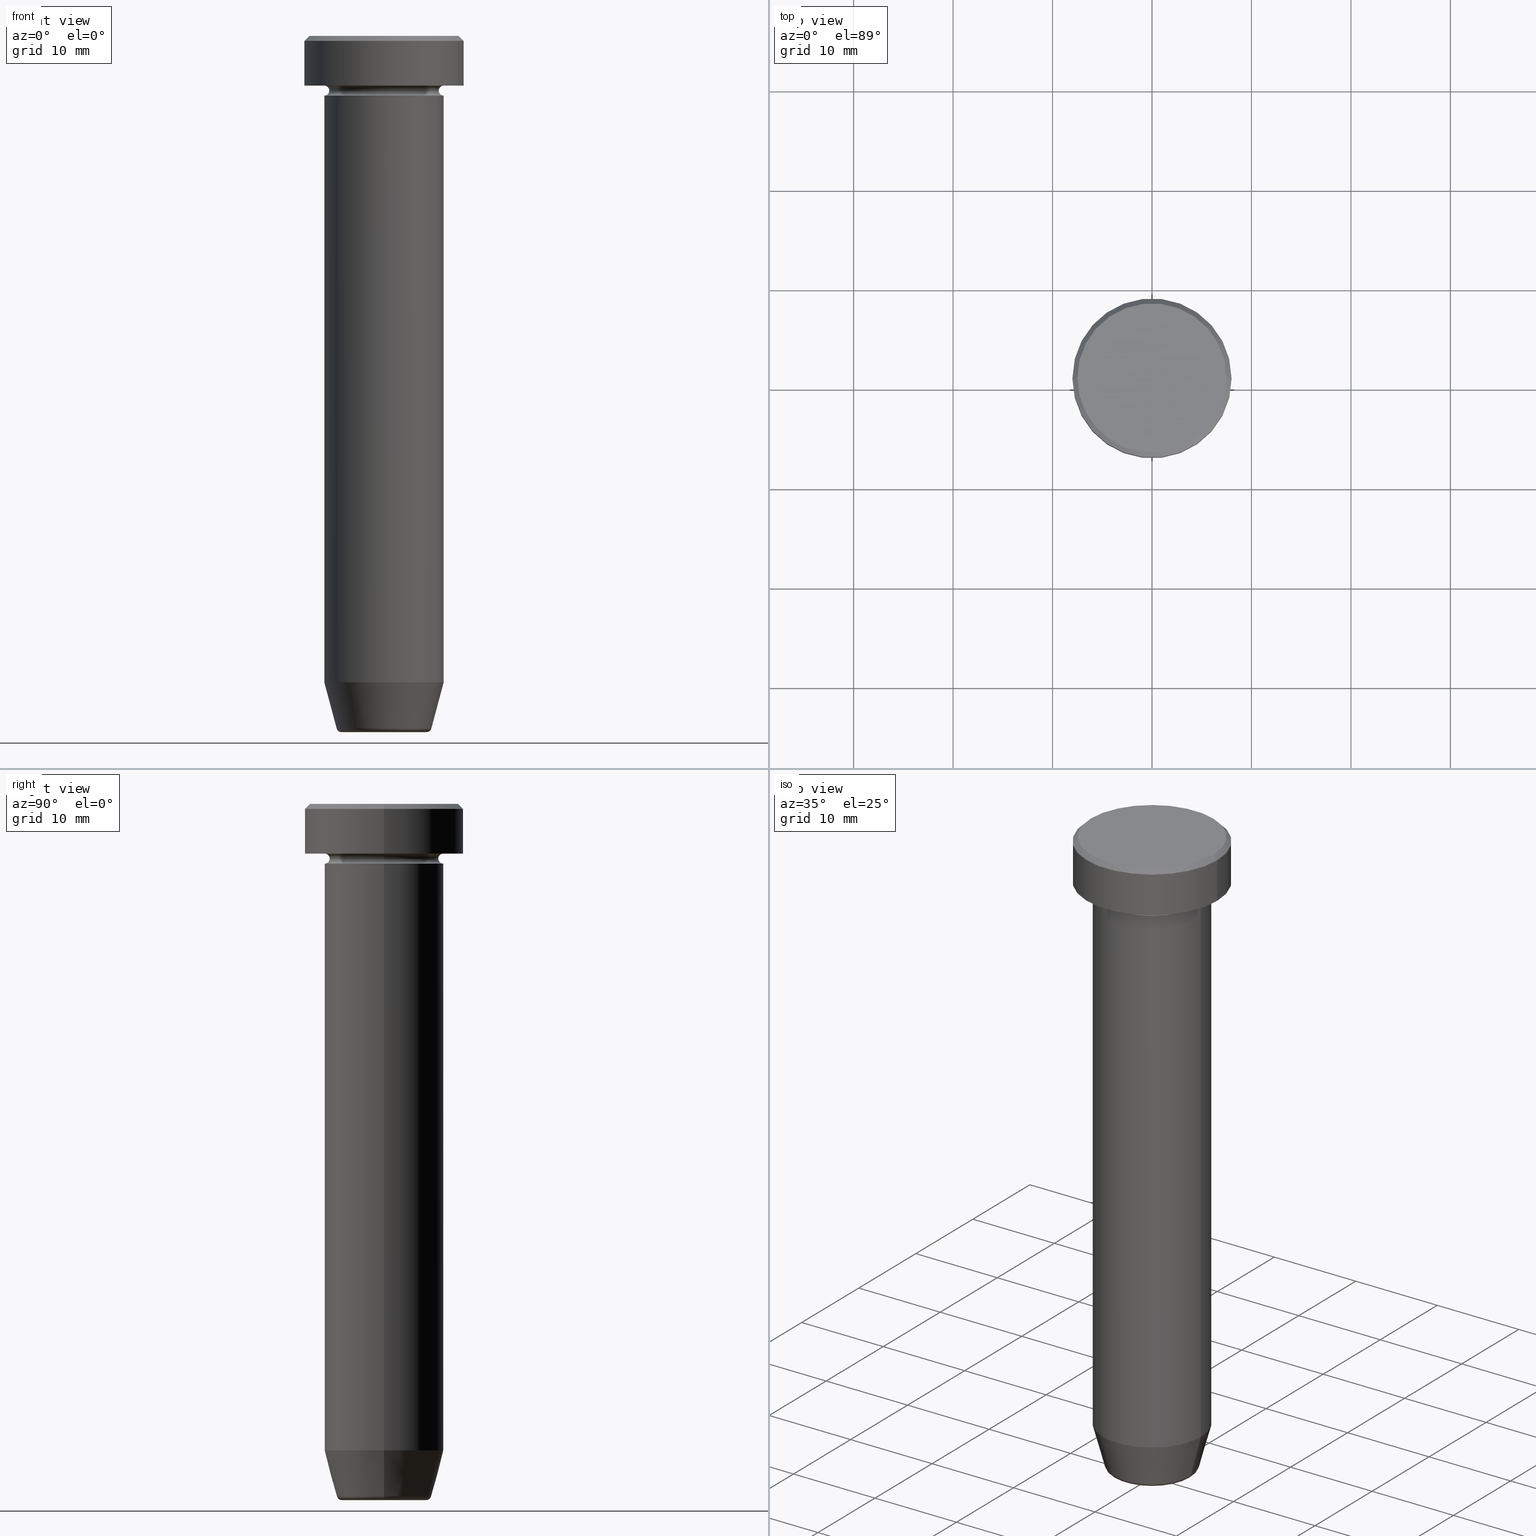
[diagram: canonical four-view strip — front | top / right | iso, engineering-drawing reading convention]
A machine part, canonical four-view strip (front | top / right | iso — engineering-drawing reading convention). The complete STEP part file that produces these views, byte-faithful:
ISO-10303-21;
HEADER;
FILE_DESCRIPTION (( 'STEP AP203' ),
    '1' );
FILE_NAME ('f1b6.STEP',
    '2024-01-02T23:16:11',
    ( '' ),
    ( '' ),
    'SwSTEP 2.0',
    'SolidWorks 2019',
    '' );
FILE_SCHEMA (( 'CONFIG_CONTROL_DESIGN' ));
ENDSEC;

DATA;
#1 = CARTESIAN_POINT ( 'NONE',  ( 0.000000000000000000, 0.000000000000000000, 0.000000000000000000 ) ) ;
#2 = AXIS2_PLACEMENT_3D ( 'NONE', #589, #73, #536 ) ;
#3 = ORIENTED_EDGE ( 'NONE', *, *, #435, .T. ) ;
#4 = CARTESIAN_POINT ( 'NONE',  ( 0.000000000000000000, 0.000000000000000000, 0.000000000000000000 ) ) ;
#5 = ORIENTED_EDGE ( 'NONE', *, *, #435, .F. ) ;
#6 = EDGE_CURVE ( 'NONE', #58, #16, #518, .T. ) ;
#7 = SECURITY_CLASSIFICATION_LEVEL ( 'unclassified' ) ;
#8 = EDGE_CURVE ( 'NONE', #314, #171, #42, .T. ) ;
#9 = DIRECTION ( 'NONE',  ( -0.000000000000000000, -0.000000000000000000, 1.000000000000000000 ) ) ;
#10 = ORIENTED_EDGE ( 'NONE', *, *, #71, .F. ) ;
#11 = CARTESIAN_POINT ( 'NONE',  ( 0.000000000000000000, 8.000000000000000000, -5.000000000000000000 ) ) ;
#12 = ORIENTED_EDGE ( 'NONE', *, *, #341, .T. ) ;
#13 =( LENGTH_UNIT ( ) NAMED_UNIT ( * ) SI_UNIT ( .MILLI., .METRE. ) );
#14 = APPLICATION_CONTEXT ( 'configuration controlled 3d designs of mechanical parts and assemblies' ) ;
#15 = DIRECTION ( 'NONE',  ( 0.000000000000000000, 0.000000000000000000, -1.000000000000000000 ) ) ;
#16 = VERTEX_POINT ( 'NONE', #255 ) ;
#17 = CALENDAR_DATE ( 2024, 3, 1 ) ;
#18 = DIRECTION ( 'NONE',  ( -0.000000000000000000, -0.000000000000000000, 1.000000000000000000 ) ) ;
#19 = ORIENTED_EDGE ( 'NONE', *, *, #274, .F. ) ;
#20 = TOROIDAL_SURFACE ( 'NONE', #90, 4.276590543854903004, 0.5000000000000000000 ) ;
#21 = DIRECTION ( 'NONE',  ( -0.000000000000000000, -0.000000000000000000, 1.000000000000000000 ) ) ;
#22 = EDGE_CURVE ( 'NONE', #16, #235, #120, .T. ) ;
#23 = DIRECTION ( 'NONE',  ( 0.000000000000000000, 0.000000000000000000, -1.000000000000000000 ) ) ;
#24 = FACE_OUTER_BOUND ( 'NONE', #563, .T. ) ;
#25 = CARTESIAN_POINT ( 'NONE',  ( 0.000000000000000000, 0.000000000000000000, -65.00000000000000000 ) ) ;
#26 = CARTESIAN_POINT ( 'NONE',  ( 8.000000000000000000, 0.000000000000000000, -5.000000000000000000 ) ) ;
#27 = AXIS2_PLACEMENT_3D ( 'NONE', #481, #342, #339 ) ;
#28 = DIRECTION ( 'NONE',  ( -0.000000000000000000, -0.000000000000000000, 1.000000000000000000 ) ) ;
#29 = CYLINDRICAL_SURFACE ( 'NONE', #532, 6.000000000000000000 ) ;
#30 = DIRECTION ( 'NONE',  ( 0.000000000000000000, -1.000000000000000000, 0.000000000000000000 ) ) ;
#31 = VERTEX_POINT ( 'NONE', #584 ) ;
#32 = AXIS2_PLACEMENT_3D ( 'NONE', #267, #313, #506 ) ;
#33 = FACE_OUTER_BOUND ( 'NONE', #594, .T. ) ;
#34 = ORIENTED_EDGE ( 'NONE', *, *, #156, .F. ) ;
#35 = CARTESIAN_POINT ( 'NONE',  ( 0.000000000000000000, 0.000000000000000000, -5.500000000000000000 ) ) ;
#36 = EDGE_LOOP ( 'NONE', ( #101, #429, #3, #390 ) ) ;
#37 = CARTESIAN_POINT ( 'NONE',  ( 5.500000000000000000, 0.000000000000000000, -5.500000000000000000 ) ) ;
#38 = ORIENTED_EDGE ( 'NONE', *, *, #154, .F. ) ;
#39 = AXIS2_PLACEMENT_3D ( 'NONE', #487, #21, #247 ) ;
#40 = CARTESIAN_POINT ( 'NONE',  ( -6.000000000000000000, 0.000000000000000000, -4.999999999999999112 ) ) ;
#41 = VERTEX_POINT ( 'NONE', #433 ) ;
#42 = CIRCLE ( 'NONE', #263, 6.000000000000000000 ) ;
#43 = DIRECTION ( 'NONE',  ( -0.000000000000000000, -0.000000000000000000, 1.000000000000000000 ) ) ;
#44 = ORIENTED_EDGE ( 'NONE', *, *, #370, .F. ) ;
#45 = APPROVAL_ROLE ( '' ) ;
#46 = CARTESIAN_POINT ( 'NONE',  ( 0.000000000000000000, 0.000000000000000000, -5.000000000000000000 ) ) ;
#47 = ADVANCED_FACE ( 'NONE', ( #494 ), #29, .T. ) ;
#48 = ORIENTED_EDGE ( 'NONE', *, *, #156, .T. ) ;
#49 = PERSON_AND_ORGANIZATION_ROLE ( 'design_supplier' ) ;
#50 = CARTESIAN_POINT ( 'NONE',  ( -6.000000000000000000, 7.347880794884119736E-16, -6.000000000000000000 ) ) ;
#51 = AXIS2_PLACEMENT_3D ( 'NONE', #590, #401, #163 ) ;
#52 = VERTEX_POINT ( 'NONE', #437 ) ;
#53 = APPROVAL_STATUS ( 'not_yet_approved' ) ;
#54 = EDGE_CURVE ( 'NONE', #93, #521, #152, .T. ) ;
#55 = DIRECTION ( 'NONE',  ( 1.000000000000000000, 0.000000000000000000, 0.000000000000000000 ) ) ;
#56 = ORIENTED_EDGE ( 'NONE', *, *, #308, .F. ) ;
#57 = CARTESIAN_POINT ( 'NONE',  ( 6.000000000000000000, 0.000000000000000000, -17.50000000000000000 ) ) ;
#58 = VERTEX_POINT ( 'NONE', #26 ) ;
#59 = DIRECTION ( 'NONE',  ( 1.000000000000000000, 0.000000000000000000, 0.000000000000000000 ) ) ;
#60 = PLANE ( 'NONE',  #395 ) ;
#61 = CIRCLE ( 'NONE', #312, 6.000000000000000000 ) ;
#62 = FACE_OUTER_BOUND ( 'NONE', #468, .T. ) ;
#63 = DIRECTION ( 'NONE',  ( 1.000000000000000000, 0.000000000000000000, 0.000000000000000000 ) ) ;
#64 = EDGE_CURVE ( 'NONE', #235, #16, #475, .T. ) ;
#65 = EDGE_CURVE ( 'NONE', #257, #521, #460, .T. ) ;
#66 = VECTOR ( 'NONE', #347, 1000.000000000000114 ) ;
#67 = EDGE_CURVE ( 'NONE', #223, #16, #442, .T. ) ;
#68 = MANIFOLD_SOLID_BREP ( 'Zaoblit4', #399 ) ;
#69 = CARTESIAN_POINT ( 'NONE',  ( -6.000000000000000000, 7.347880794884119736E-16, 0.000000000000000000 ) ) ;
#70 = CARTESIAN_POINT ( 'NONE',  ( 0.000000000000000000, 0.000000000000000000, -5.000000000000000000 ) ) ;
#71 = EDGE_CURVE ( 'NONE', #241, #58, #379, .T. ) ;
#72 = DIRECTION ( 'NONE',  ( 0.2588190451025210170, 0.000000000000000000, 0.9659258262890680902 ) ) ;
#73 = DIRECTION ( 'NONE',  ( -0.000000000000000000, -0.000000000000000000, 1.000000000000000000 ) ) ;
#74 = EDGE_CURVE ( 'NONE', #93, #41, #450, .T. ) ;
#75 = FACE_OUTER_BOUND ( 'NONE', #448, .T. ) ;
#76 = ORIENTED_EDGE ( 'NONE', *, *, #54, .F. ) ;
#77 = APPROVAL ( #53, 'NEUR�EN�' ) ;
#78 = DIRECTION ( 'NONE',  ( -0.000000000000000000, -0.000000000000000000, 1.000000000000000000 ) ) ;
#79 = VERTEX_POINT ( 'NONE', #209 ) ;
#80 = CIRCLE ( 'NONE', #89, 6.000000000000000000 ) ;
#81 = DIRECTION ( 'NONE',  ( 1.000000000000000000, 0.000000000000000000, 0.000000000000000000 ) ) ;
#82 = EDGE_LOOP ( 'NONE', ( #474, #201, #225, #510 ) ) ;
#83 = ADVANCED_FACE ( 'NONE', ( #250 ), #349, .F. ) ;
#84 = DIRECTION ( 'NONE',  ( 1.000000000000000000, 0.000000000000000000, 0.000000000000000000 ) ) ;
#85 = EDGE_LOOP ( 'NONE', ( #574, #19 ) ) ;
#86 = DIRECTION ( 'NONE',  ( 1.000000000000000000, 0.000000000000000000, 0.000000000000000000 ) ) ;
#87 = PRODUCT ( 'f1b6', 'f1b6', '', ( #96 ) ) ;
#88 = VERTEX_POINT ( 'NONE', #439 ) ;
#89 = AXIS2_PLACEMENT_3D ( 'NONE', #392, #155, #350 ) ;
#90 = AXIS2_PLACEMENT_3D ( 'NONE', #438, #436, #535 ) ;
#91 = LINE ( 'NONE', #425, #527 ) ;
#92 = ADVANCED_FACE ( 'NONE', ( #541 ), #60, .T. ) ;
#93 = VERTEX_POINT ( 'NONE', #207 ) ;
#94 = LINE ( 'NONE', #285, #159 ) ;
#95 = ORIENTED_EDGE ( 'NONE', *, *, #251, .T. ) ;
#96 = MECHANICAL_CONTEXT ( 'NONE', #14, 'mechanical' ) ;
#97 = CARTESIAN_POINT ( 'NONE',  ( 0.000000000000000000, -4.336808689942017736E-15, -17.50000000000000000 ) ) ;
#98 = ORIENTED_EDGE ( 'NONE', *, *, #8, .F. ) ;
#99 = DIRECTION ( 'NONE',  ( 0.000000000000000000, -1.000000000000000000, 0.000000000000000000 ) ) ;
#100 = AXIS2_PLACEMENT_3D ( 'NONE', #491, #115, #116 ) ;
#101 = ORIENTED_EDGE ( 'NONE', *, *, #333, .F. ) ;
#102 = CALENDAR_DATE ( 2024, 3, 1 ) ;
#103 = CARTESIAN_POINT ( 'NONE',  ( 0.000000000000000000, 0.000000000000000000, 0.000000000000000000 ) ) ;
#104 = EDGE_LOOP ( 'NONE', ( #553, #505, #98, #5 ) ) ;
#105 = APPROVAL_ROLE ( '' ) ;
#106 = DIRECTION ( 'NONE',  ( -1.000000000000000000, 0.000000000000000000, -0.000000000000000000 ) ) ;
#107 = DIRECTION ( 'NONE',  ( -0.000000000000000000, -0.000000000000000000, 1.000000000000000000 ) ) ;
#108 = DIRECTION ( 'NONE',  ( -0.000000000000000000, -0.000000000000000000, 1.000000000000000000 ) ) ;
#109 = DIRECTION ( 'NONE',  ( 0.000000000000000000, 0.000000000000000000, -1.000000000000000000 ) ) ;
#110 = AXIS2_PLACEMENT_3D ( 'NONE', #245, #441, #543 ) ;
#111 = CIRCLE ( 'NONE', #261, 0.5000000000000004441 ) ;
#112 = VECTOR ( 'NONE', #249, 1000.000000000000000 ) ;
#113 = DIRECTION ( 'NONE',  ( 1.224646799147353207E-16, 1.000000000000000000, 0.000000000000000000 ) ) ;
#114 = DIRECTION ( 'NONE',  ( 1.000000000000000000, 0.000000000000000000, 0.000000000000000000 ) ) ;
#115 = DIRECTION ( 'NONE',  ( -0.000000000000000000, -0.000000000000000000, 1.000000000000000000 ) ) ;
#116 = DIRECTION ( 'NONE',  ( -1.000000000000000000, 0.000000000000000000, 0.000000000000000000 ) ) ;
#117 = AXIS2_PLACEMENT_3D ( 'NONE', #1, #282, #380 ) ;
#118 = LOCAL_TIME ( 0, 16, 11.00000000000000000, #337 ) ;
#119 = DIRECTION ( 'NONE',  ( 0.000000000000000000, 0.000000000000000000, -1.000000000000000000 ) ) ;
#120 = CIRCLE ( 'NONE', #568, 8.000000000000000000 ) ;
#121 = APPLICATION_CONTEXT ( 'configuration controlled 3d designs of mechanical parts and assemblies' ) ;
#122 = LINE ( 'NONE', #125, #469 ) ;
#123 = EDGE_CURVE ( 'NONE', #317, #596, #146, .T. ) ;
#124 = VERTEX_POINT ( 'NONE', #398 ) ;
#125 = CARTESIAN_POINT ( 'NONE',  ( 6.000000000000000000, 0.000000000000000000, 0.000000000000000000 ) ) ;
#126 = ORIENTED_EDGE ( 'NONE', *, *, #192, .F. ) ;
#127 = AXIS2_PLACEMENT_3D ( 'NONE', #46, #140, #420 ) ;
#128 = PLANE ( 'NONE',  #172 ) ;
#129 = CC_DESIGN_DATE_AND_TIME_ASSIGNMENT ( #197, #226, ( #348 ) ) ;
#130 = ORIENTED_EDGE ( 'NONE', *, *, #318, .T. ) ;
#131 = CARTESIAN_POINT ( 'NONE',  ( 0.000000000000000000, 0.000000000000000000, 0.000000000000000000 ) ) ;
#132 = EDGE_LOOP ( 'NONE', ( #444, #95, #56, #182 ) ) ;
#133 = DIRECTION ( 'NONE',  ( 0.000000000000000000, 0.000000000000000000, -1.000000000000000000 ) ) ;
#134 = ORIENTED_EDGE ( 'NONE', *, *, #426, .T. ) ;
#135 = PERSON_AND_ORGANIZATION ( #284, #504 ) ;
#136 = AXIS2_PLACEMENT_3D ( 'NONE', #170, #449, #167 ) ;
#137 = DIRECTION ( 'NONE',  ( -1.224646799147353207E-16, 1.000000000000000000, 0.000000000000000000 ) ) ;
#138 = EDGE_LOOP ( 'NONE', ( #148, #48 ) ) ;
#139 = APPROVAL_STATUS ( 'not_yet_approved' ) ;
#140 = DIRECTION ( 'NONE',  ( -0.000000000000000000, -0.000000000000000000, 1.000000000000000000 ) ) ;
#141 = EDGE_LOOP ( 'NONE', ( #216, #465 ) ) ;
#142 = CARTESIAN_POINT ( 'NONE',  ( 0.000000000000000000, 0.000000000000000000, 0.000000000000000000 ) ) ;
#143 = DIRECTION ( 'NONE',  ( -0.000000000000000000, -0.000000000000000000, 1.000000000000000000 ) ) ;
#144 = APPROVAL_STATUS ( 'not_yet_approved' ) ;
#145 = CYLINDRICAL_SURFACE ( 'NONE', #117, 6.000000000000000000 ) ;
#146 = CIRCLE ( 'NONE', #213, 6.000000000000000000 ) ;
#147 = CIRCLE ( 'NONE', #503, 6.000000000000000000 ) ;
#148 = ORIENTED_EDGE ( 'NONE', *, *, #434, .T. ) ;
#149 = LOCAL_TIME ( 0, 16, 11.00000000000000000, #180 ) ;
#150 = DATE_AND_TIME ( #17, #188 ) ;
#151 = CARTESIAN_POINT ( 'NONE',  ( 6.000000000000000000, 0.000000000000000000, -6.000000000000000000 ) ) ;
#152 = LINE ( 'NONE', #544, #160 ) ;
#153 = FACE_OUTER_BOUND ( 'NONE', #189, .T. ) ;
#154 = EDGE_CURVE ( 'NONE', #41, #93, #445, .T. ) ;
#155 = DIRECTION ( 'NONE',  ( -0.000000000000000000, -0.000000000000000000, 1.000000000000000000 ) ) ;
#156 = EDGE_CURVE ( 'NONE', #266, #513, #80, .T. ) ;
#157 = CYLINDRICAL_SURFACE ( 'NONE', #492, 8.000000000000000000 ) ;
#158 = CARTESIAN_POINT ( 'NONE',  ( 7.500000000000009770, 9.184850993605161750E-16, 0.000000000000000000 ) ) ;
#159 = VECTOR ( 'NONE', #319, 1000.000000000000114 ) ;
#160 = VECTOR ( 'NONE', #534, 1000.000000000000114 ) ;
#161 = CARTESIAN_POINT ( 'NONE',  ( 0.000000000000000000, 6.000000000000000000, -17.50000000000000000 ) ) ;
#162 = ADVANCED_FACE ( 'NONE', ( #582 ), #561, .T. ) ;
#163 = DIRECTION ( 'NONE',  ( -1.000000000000000000, 0.000000000000000000, 0.000000000000000000 ) ) ;
#164 = CIRCLE ( 'NONE', #244, 0.5000000000000004441 ) ;
#165 = CARTESIAN_POINT ( 'NONE',  ( 0.000000000000000000, 0.000000000000000000, -70.00000000000000000 ) ) ;
#166 = ORIENTED_EDGE ( 'NONE', *, *, #67, .F. ) ;
#167 = DIRECTION ( 'NONE',  ( 1.000000000000000000, 0.000000000000000000, 0.000000000000000000 ) ) ;
#168 = EDGE_CURVE ( 'NONE', #41, #257, #248, .T. ) ;
#169 = ORIENTED_EDGE ( 'NONE', *, *, #508, .F. ) ;
#170 = CARTESIAN_POINT ( 'NONE',  ( 0.000000000000000000, 0.000000000000000000, 0.000000000000000000 ) ) ;
#171 = VERTEX_POINT ( 'NONE', #252 ) ;
#172 = AXIS2_PLACEMENT_3D ( 'NONE', #316, #592, #409 ) ;
#173 = VECTOR ( 'NONE', #413, 1000.000000000000000 ) ;
#174 = PRODUCT_DEFINITION_FORMATION_WITH_SPECIFIED_SOURCE ( 'LIBOVOLN�', '', #87, .NOT_KNOWN. ) ;
#175 = CARTESIAN_POINT ( 'NONE',  ( 0.000000000000000000, 0.000000000000000000, -17.50000000000000000 ) ) ;
#176 = ORIENTED_EDGE ( 'NONE', *, *, #297, .F. ) ;
#177 = UNCERTAINTY_MEASURE_WITH_UNIT (LENGTH_MEASURE( 1.000000000000000082E-05 ), #13, 'distance_accuracy_value', 'NONE');
#178 = DIRECTION ( 'NONE',  ( -0.000000000000000000, -0.000000000000000000, 1.000000000000000000 ) ) ;
#179 = EDGE_LOOP ( 'NONE', ( #260, #324, #558, #309 ) ) ;
#180 = COORDINATED_UNIVERSAL_TIME_OFFSET ( 1, 0, .AHEAD. ) ;
#181 = FACE_OUTER_BOUND ( 'NONE', #306, .T. ) ;
#182 = ORIENTED_EDGE ( 'NONE', *, *, #385, .F. ) ;
#183 = CC_DESIGN_DATE_AND_TIME_ASSIGNMENT ( #375, #287, ( #447 ) ) ;
#184 = PERSON_AND_ORGANIZATION ( #284, #504 ) ;
#185 = CIRCLE ( 'NONE', #291, 7.500000000000009770 ) ;
#186 = AXIS2_PLACEMENT_3D ( 'NONE', #530, #523, #571 ) ;
#187 = FACE_OUTER_BOUND ( 'NONE', #196, .T. ) ;
#188 = LOCAL_TIME ( 0, 16, 11.00000000000000000, #514 ) ;
#189 = EDGE_LOOP ( 'NONE', ( #76, #421, #381, #569 ) ) ;
#190 = APPLICATION_PROTOCOL_DEFINITION ( 'international standard', 'config_control_design', 1994, #14 ) ;
#191 = DIRECTION ( 'NONE',  ( 0.000000000000000000, 0.000000000000000000, -1.000000000000000000 ) ) ;
#192 = EDGE_CURVE ( 'NONE', #223, #124, #185, .T. ) ;
#193 = EDGE_LOOP ( 'NONE', ( #599, #283, #531, #34 ) ) ;
#194 = EDGE_CURVE ( 'NONE', #238, #88, #538, .T. ) ;
#195 = FACE_OUTER_BOUND ( 'NONE', #132, .T. ) ;
#196 = EDGE_LOOP ( 'NONE', ( #166, #410, #134, #384 ) ) ;
#197 = DATE_AND_TIME ( #277, #578 ) ;
#198 = DIRECTION ( 'NONE',  ( -1.000000000000000000, 1.224646799147351482E-16, 0.000000000000000000 ) ) ;
#199 = CIRCLE ( 'NONE', #253, 0.4999999999999995559 ) ;
#200 = APPROVAL_PERSON_ORGANIZATION ( #322, #290, #105 ) ;
#201 = ORIENTED_EDGE ( 'NONE', *, *, #575, .T. ) ;
#202 = ADVANCED_FACE ( 'NONE', ( #33 ), #219, .T. ) ;
#203 = DIRECTION ( 'NONE',  ( -0.000000000000000000, -0.000000000000000000, 1.000000000000000000 ) ) ;
#204 = CARTESIAN_POINT ( 'NONE',  ( 0.000000000000000000, 0.000000000000000000, -6.000000000000000000 ) ) ;
#205 = CARTESIAN_POINT ( 'NONE',  ( 0.000000000000000000, 0.000000000000000000, -5.500000000000000000 ) ) ;
#206 = DIRECTION ( 'NONE',  ( 1.000000000000000000, 0.000000000000000000, 0.000000000000000000 ) ) ;
#207 = CARTESIAN_POINT ( 'NONE',  ( -4.759553456999439547, 6.588326350684602264E-16, -69.62940952255127058 ) ) ;
#208 = AXIS2_PLACEMENT_3D ( 'NONE', #237, #222, #367 ) ;
#209 = CARTESIAN_POINT ( 'NONE',  ( 6.000000000000000000, 0.000000000000000000, -17.50000000000000000 ) ) ;
#210 = CC_DESIGN_PERSON_AND_ORGANIZATION_ASSIGNMENT ( #184, #325, ( #447 ) ) ;
#211 = DIRECTION ( 'NONE',  ( -0.000000000000000000, -0.000000000000000000, 1.000000000000000000 ) ) ;
#212 = DIRECTION ( 'NONE',  ( -0.000000000000000000, -0.000000000000000000, 1.000000000000000000 ) ) ;
#213 = AXIS2_PLACEMENT_3D ( 'NONE', #204, #343, #580 ) ;
#214 = ORIENTED_EDGE ( 'NONE', *, *, #370, .T. ) ;
#215 = AXIS2_PLACEMENT_3D ( 'NONE', #165, #119, #497 ) ;
#216 = ORIENTED_EDGE ( 'NONE', *, *, #305, .T. ) ;
#217 = DIRECTION ( 'NONE',  ( -0.000000000000000000, -0.000000000000000000, 1.000000000000000000 ) ) ;
#218 = ORIENTED_EDGE ( 'NONE', *, *, #65, .F. ) ;
#219 = CYLINDRICAL_SURFACE ( 'NONE', #501, 8.000000000000000000 ) ;
#220 = ORIENTED_EDGE ( 'NONE', *, *, #64, .T. ) ;
#221 = CIRCLE ( 'NONE', #39, 6.000000000000000000 ) ;
#222 = DIRECTION ( 'NONE',  ( -0.000000000000000000, -0.000000000000000000, 1.000000000000000000 ) ) ;
#223 = VERTEX_POINT ( 'NONE', #548 ) ;
#224 = DIRECTION ( 'NONE',  ( -0.000000000000000000, -1.000000000000000000, -0.000000000000000000 ) ) ;
#225 = ORIENTED_EDGE ( 'NONE', *, *, #123, .T. ) ;
#226 = DATE_TIME_ROLE ( 'creation_date' ) ;
#227 = EDGE_CURVE ( 'NONE', #257, #513, #122, .T. ) ;
#228 = DIRECTION ( 'NONE',  ( 0.000000000000000000, 0.000000000000000000, -1.000000000000000000 ) ) ;
#229 = ORIENTED_EDGE ( 'NONE', *, *, #192, .T. ) ;
#230 = PERSON_AND_ORGANIZATION ( #284, #504 ) ;
#231 = CIRCLE ( 'NONE', #321, 0.5000000000000004441 ) ;
#232 = ADVANCED_FACE ( 'NONE', ( #551 ), #585, .F. ) ;
#233 = PLANE ( 'NONE',  #456 ) ;
#234 = APPROVAL_PERSON_ORGANIZATION ( #135, #452, #45 ) ;
#235 = VERTEX_POINT ( 'NONE', #443 ) ;
#236 = CARTESIAN_POINT ( 'NONE',  ( 0.000000000000000000, 0.000000000000000000, 0.000000000000000000 ) ) ;
#237 = CARTESIAN_POINT ( 'NONE',  ( 0.000000000000000000, 0.000000000000000000, 0.000000000000000000 ) ) ;
#238 = VERTEX_POINT ( 'NONE', #37 ) ;
#239 = DIRECTION ( 'NONE',  ( 0.000000000000000000, 0.000000000000000000, 1.000000000000000000 ) ) ;
#240 = CARTESIAN_POINT ( 'NONE',  ( 0.000000000000000000, 0.000000000000000000, -70.00000000000000000 ) ) ;
#241 = VERTEX_POINT ( 'NONE', #307 ) ;
#242 = COORDINATED_UNIVERSAL_TIME_OFFSET ( 1, 0, .AHEAD. ) ;
#243 = CARTESIAN_POINT ( 'NONE',  ( 0.000000000000000000, 0.000000000000000000, -17.50000000000000000 ) ) ;
#244 = AXIS2_PLACEMENT_3D ( 'NONE', #489, #583, #198 ) ;
#245 = CARTESIAN_POINT ( 'NONE',  ( 0.000000000000000000, 0.000000000000000000, -5.500000000000000000 ) ) ;
#246 = ADVANCED_FACE ( 'NONE', ( #310 ), #128, .F. ) ;
#247 = DIRECTION ( 'NONE',  ( 1.000000000000000000, 0.000000000000000000, 0.000000000000000000 ) ) ;
#248 = LINE ( 'NONE', #299, #430 ) ;
#249 = DIRECTION ( 'NONE',  ( -0.000000000000000000, -0.000000000000000000, 1.000000000000000000 ) ) ;
#250 = FACE_OUTER_BOUND ( 'NONE', #82, .T. ) ;
#251 = EDGE_CURVE ( 'NONE', #31, #317, #407, .T. ) ;
#252 = CARTESIAN_POINT ( 'NONE',  ( 6.000000000000000000, 7.347880794884119736E-16, -4.999999999999999112 ) ) ;
#253 = AXIS2_PLACEMENT_3D ( 'NONE', #540, #113, #288 ) ;
#254 = CC_DESIGN_PERSON_AND_ORGANIZATION_ASSIGNMENT ( #463, #418, ( #174 ) ) ;
#255 = CARTESIAN_POINT ( 'NONE',  ( 8.000000000000000000, 0.000000000000000000, -0.4999999999999935052 ) ) ;
#256 = DIRECTION ( 'NONE',  ( 0.000000000000000000, 0.000000000000000000, -1.000000000000000000 ) ) ;
#257 = VERTEX_POINT ( 'NONE', #509 ) ;
#258 = CARTESIAN_POINT ( 'NONE',  ( -6.000000000000000000, 7.347880794884119736E-16, -17.50000000000000000 ) ) ;
#259 = AXIS2_PLACEMENT_3D ( 'NONE', #35, #212, #81 ) ;
#260 = ORIENTED_EDGE ( 'NONE', *, *, #251, .F. ) ;
#261 = AXIS2_PLACEMENT_3D ( 'NONE', #467, #99, #15 ) ;
#262 = DIRECTION ( 'NONE',  ( -0.000000000000000000, -0.000000000000000000, 1.000000000000000000 ) ) ;
#263 = AXIS2_PLACEMENT_3D ( 'NONE', #525, #211, #300 ) ;
#264 = ADVANCED_FACE ( 'NONE', ( #595 ), #545, .F. ) ;
#265 = CARTESIAN_POINT ( 'NONE',  ( 0.000000000000000000, 0.000000000000000000, -6.000000000000000000 ) ) ;
#266 = VERTEX_POINT ( 'NONE', #258 ) ;
#267 = CARTESIAN_POINT ( 'NONE',  ( 0.000000000000000000, 0.000000000000000000, -69.50000000000000000 ) ) ;
#268 = EDGE_CURVE ( 'NONE', #359, #41, #539, .T. ) ;
#269 = ORIENTED_EDGE ( 'NONE', *, *, #168, .F. ) ;
#270 = AXIS2_PLACEMENT_3D ( 'NONE', #240, #391, #432 ) ;
#271 = FACE_OUTER_BOUND ( 'NONE', #193, .T. ) ;
#272 = ORIENTED_EDGE ( 'NONE', *, *, #575, .F. ) ;
#273 = CARTESIAN_POINT ( 'NONE',  ( -6.000000000000000000, 0.000000000000000000, -5.500000000000000000 ) ) ;
#274 = EDGE_CURVE ( 'NONE', #31, #79, #61, .T. ) ;
#275 = ORIENTED_EDGE ( 'NONE', *, *, #482, .F. ) ;
#276 = MANIFOLD_SOLID_BREP ( 'Zkosen�1', #415 ) ;
#277 = CALENDAR_DATE ( 2024, 3, 1 ) ;
#278 = CYLINDRICAL_SURFACE ( 'NONE', #208, 6.000000000000000000 ) ;
#279 = ORIENTED_EDGE ( 'NONE', *, *, #194, .F. ) ;
#280 = PERSON_AND_ORGANIZATION_ROLE ( 'design_owner' ) ;
#281 = CIRCLE ( 'NONE', #27, 8.000000000000000000 ) ;
#282 = DIRECTION ( 'NONE',  ( -0.000000000000000000, -0.000000000000000000, 1.000000000000000000 ) ) ;
#283 = ORIENTED_EDGE ( 'NONE', *, *, #556, .T. ) ;
#284 = PERSON ( 'NEUR�EN�', 'NEUR�EN�', 'NEUR�EN�', ('NEUR�EN�'), ('NEUR�EN�'), ('NEUR�EN�') ) ;
#285 = CARTESIAN_POINT ( 'NONE',  ( -7.500000000000009770, 0.000000000000000000, 0.000000000000000000 ) ) ;
#286 = ORIENTED_EDGE ( 'NONE', *, *, #308, .T. ) ;
#287 = DATE_TIME_ROLE ( 'classification_date' ) ;
#288 = DIRECTION ( 'NONE',  ( -1.000000000000000000, 1.224646799147353454E-16, 0.000000000000000000 ) ) ;
#289 = CARTESIAN_POINT ( 'NONE',  ( 0.000000000000000000, 0.000000000000000000, 0.000000000000000000 ) ) ;
#290 = APPROVAL ( #144, 'NEUR�EN�' ) ;
#291 = AXIS2_PLACEMENT_3D ( 'NONE', #402, #499, #86 ) ;
#292 = DIRECTION ( 'NONE',  ( 1.000000000000000000, 0.000000000000000000, 0.000000000000000000 ) ) ;
#293 = TOROIDAL_SURFACE ( 'NONE', #32, 4.276590543854903004, 0.5000000000000000000 ) ;
#294 = DIRECTION ( 'NONE',  ( -0.000000000000000000, -0.000000000000000000, 1.000000000000000000 ) ) ;
#295 = DIRECTION ( 'NONE',  ( 1.000000000000000000, 0.000000000000000000, 0.000000000000000000 ) ) ;
#296 = DIRECTION ( 'NONE',  ( -1.000000000000000000, 0.000000000000000000, -0.000000000000000000 ) ) ;
#297 = EDGE_CURVE ( 'NONE', #52, #359, #403, .T. ) ;
#298 = ADVANCED_FACE ( 'NONE', ( #75 ), #554, .T. ) ;
#299 = CARTESIAN_POINT ( 'NONE',  ( 4.660254037844383745, 0.000000000000000000, -70.00000000000000000 ) ) ;
#300 = DIRECTION ( 'NONE',  ( -1.000000000000000000, 0.000000000000000000, 0.000000000000000000 ) ) ;
#301 = CONICAL_SURFACE ( 'NONE', #270, 4.660254037844383745, 0.2617993877991497409 ) ;
#302 = LOCAL_TIME ( 0, 16, 11.00000000000000000, #528 ) ;
#303 = ADVANCED_FACE ( 'NONE', ( #358 ), #293, .T. ) ;
#304 = DIRECTION ( 'NONE',  ( 1.000000000000000000, 0.000000000000000000, 0.000000000000000000 ) ) ;
#305 = EDGE_CURVE ( 'NONE', #359, #52, #374, .T. ) ;
#306 = EDGE_LOOP ( 'NONE', ( #377, #458, #417, #498 ) ) ;
#307 = CARTESIAN_POINT ( 'NONE',  ( -8.000000000000000000, 9.797174393178825657E-16, -5.000000000000000000 ) ) ;
#308 = EDGE_CURVE ( 'NONE', #596, #317, #147, .T. ) ;
#309 = ORIENTED_EDGE ( 'NONE', *, *, #123, .F. ) ;
#310 = FACE_OUTER_BOUND ( 'NONE', #141, .T. ) ;
#311 = ORIENTED_EDGE ( 'NONE', *, *, #268, .F. ) ;
#312 = AXIS2_PLACEMENT_3D ( 'NONE', #175, #262, #304 ) ;
#313 = DIRECTION ( 'NONE',  ( -0.000000000000000000, -0.000000000000000000, 1.000000000000000000 ) ) ;
#314 = VERTEX_POINT ( 'NONE', #40 ) ;
#315 = ADVANCED_FACE ( 'NONE', ( #271 ), #145, .T. ) ;
#316 = CARTESIAN_POINT ( 'NONE',  ( 0.000000000000000000, 2.449293598294707302E-15, -70.00000000000000000 ) ) ;
#317 = VERTEX_POINT ( 'NONE', #50 ) ;
#318 = EDGE_CURVE ( 'NONE', #124, #223, #562, .T. ) ;
#319 = DIRECTION ( 'NONE',  ( -0.7071067811865451302, 0.000000000000000000, -0.7071067811865500152 ) ) ;
#320 = ORIENTED_EDGE ( 'NONE', *, *, #305, .F. ) ;
#321 = AXIS2_PLACEMENT_3D ( 'NONE', #423, #137, #335 ) ;
#322 = PERSON_AND_ORGANIZATION ( #284, #504 ) ;
#323 = FACE_OUTER_BOUND ( 'NONE', #138, .T. ) ;
#324 = ORIENTED_EDGE ( 'NONE', *, *, #274, .T. ) ;
#325 = PERSON_AND_ORGANIZATION_ROLE ( 'classification_officer' ) ;
#326 = AXIS2_PLACEMENT_3D ( 'NONE', #25, #107, #114 ) ;
#327 = CARTESIAN_POINT ( 'NONE',  ( 0.000000000000000000, 0.000000000000000000, 0.000000000000000000 ) ) ;
#328 = ORIENTED_EDGE ( 'NONE', *, *, #268, .T. ) ;
#329 = PERSON_AND_ORGANIZATION ( #284, #504 ) ;
#330 = FACE_OUTER_BOUND ( 'NONE', #424, .T. ) ;
#331 = ORIENTED_EDGE ( 'NONE', *, *, #462, .T. ) ;
#332 = APPROVAL_DATE_TIME ( #150, #290 ) ;
#333 = EDGE_CURVE ( 'NONE', #238, #171, #231, .T. ) ;
#334 = CIRCLE ( 'NONE', #586, 0.5000000000000004441 ) ;
#335 = DIRECTION ( 'NONE',  ( -1.000000000000000000, -1.224646799147351482E-16, 0.000000000000000000 ) ) ;
#336 = ORIENTED_EDGE ( 'NONE', *, *, #6, .T. ) ;
#337 = COORDINATED_UNIVERSAL_TIME_OFFSET ( 1, 0, .AHEAD. ) ;
#338 = ADVANCED_FACE ( 'NONE', ( #187 ), #354, .T. ) ;
#339 = DIRECTION ( 'NONE',  ( 1.000000000000000000, 0.000000000000000000, 0.000000000000000000 ) ) ;
#340 = DIRECTION ( 'NONE',  ( 1.000000000000000000, 0.000000000000000000, 0.000000000000000000 ) ) ;
#341 = EDGE_CURVE ( 'NONE', #238, #596, #111, .T. ) ;
#342 = DIRECTION ( 'NONE',  ( -0.000000000000000000, -0.000000000000000000, 1.000000000000000000 ) ) ;
#343 = DIRECTION ( 'NONE',  ( -0.000000000000000000, -0.000000000000000000, 1.000000000000000000 ) ) ;
#344 = DIRECTION ( 'NONE',  ( 0.000000000000000000, 0.000000000000000000, -1.000000000000000000 ) ) ;
#345 = CONICAL_SURFACE ( 'NONE', #422, 7.500000000000009770, 0.7853981633974447263 ) ;
#346 = AXIS2_PLACEMENT_3D ( 'NONE', #236, #239, #386 ) ;
#347 = DIRECTION ( 'NONE',  ( 0.7071067811865451302, 8.659560562354904508E-17, -0.7071067811865500152 ) ) ;
#348 = PRODUCT_DEFINITION ( 'NEZN�M�', '', #174, #357 ) ;
#349 = TOROIDAL_SURFACE ( 'NONE', #110, 6.000000000000000000, 0.5000000000000000000 ) ;
#350 = DIRECTION ( 'NONE',  ( 1.000000000000000000, 0.000000000000000000, 0.000000000000000000 ) ) ;
#351 = CARTESIAN_POINT ( 'NONE',  ( 0.000000000000000000, 0.000000000000000000, -0.4999999999999935052 ) ) ;
#352 = ADVANCED_FACE ( 'NONE', ( #195 ), #278, .T. ) ;
#353 = CARTESIAN_POINT ( 'NONE',  ( -6.000000000000000000, 7.347880794884119736E-16, 0.000000000000000000 ) ) ;
#354 = CONICAL_SURFACE ( 'NONE', #412, 7.500000000000009770, 0.7853981633974447263 ) ;
#355 = DIRECTION ( 'NONE',  ( -0.000000000000000000, -0.000000000000000000, 1.000000000000000000 ) ) ;
#356 = EDGE_LOOP ( 'NONE', ( #176, #461, #38, #311 ) ) ;
#357 = DESIGN_CONTEXT ( 'detailed design', #121, 'design' ) ;
#358 = FACE_OUTER_BOUND ( 'NONE', #479, .T. ) ;
#359 = VERTEX_POINT ( 'NONE', #557 ) ;
#360 = CARTESIAN_POINT ( 'NONE',  ( 0.000000000000000000, 0.000000000000000000, -70.00000000000000000 ) ) ;
#361 = AXIS2_PLACEMENT_3D ( 'NONE', #587, #488, #63 ) ;
#362 = ORIENTED_EDGE ( 'NONE', *, *, #64, .F. ) ;
#363 = CIRCLE ( 'NONE', #598, 6.000000000000000000 ) ;
#364 = DIRECTION ( 'NONE',  ( 0.000000000000000000, 0.000000000000000000, -1.000000000000000000 ) ) ;
#365 = CC_DESIGN_PERSON_AND_ORGANIZATION_ASSIGNMENT ( #329, #49, ( #174 ) ) ;
#366 = ORIENTED_EDGE ( 'NONE', *, *, #67, .T. ) ;
#367 = DIRECTION ( 'NONE',  ( 1.000000000000000000, 0.000000000000000000, 0.000000000000000000 ) ) ;
#368 = ORIENTED_EDGE ( 'NONE', *, *, #6, .F. ) ;
#369 = EDGE_CURVE ( 'NONE', #88, #238, #446, .T. ) ;
#370 = EDGE_CURVE ( 'NONE', #241, #235, #473, .T. ) ;
#371 = CALENDAR_DATE ( 2024, 3, 1 ) ;
#372 = CYLINDRICAL_SURFACE ( 'NONE', #552, 6.000000000000000000 ) ;
#373 = ORIENTED_EDGE ( 'NONE', *, *, #154, .T. ) ;
#374 = CIRCLE ( 'NONE', #485, 4.276590543854903004 ) ;
#375 = DATE_AND_TIME ( #522, #118 ) ;
#376 = DIRECTION ( 'NONE',  ( -1.000000000000000000, 0.000000000000000000, -0.000000000000000000 ) ) ;
#377 = ORIENTED_EDGE ( 'NONE', *, *, #65, .T. ) ;
#378 = DATE_AND_TIME ( #371, #149 ) ;
#379 = CIRCLE ( 'NONE', #477, 8.000000000000000000 ) ;
#380 = DIRECTION ( 'NONE',  ( 1.000000000000000000, 0.000000000000000000, 0.000000000000000000 ) ) ;
#381 = ORIENTED_EDGE ( 'NONE', *, *, #168, .T. ) ;
#382 = APPROVAL_ROLE ( '' ) ;
#383 = CARTESIAN_POINT ( 'NONE',  ( -8.000000000000000000, 9.797174393178825657E-16, 0.000000000000000000 ) ) ;
#384 = ORIENTED_EDGE ( 'NONE', *, *, #22, .F. ) ;
#385 = EDGE_CURVE ( 'NONE', #79, #596, #91, .T. ) ;
#386 = DIRECTION ( 'NONE',  ( 1.000000000000000000, 0.000000000000000000, 0.000000000000000000 ) ) ;
#387 = AXIS2_PLACEMENT_3D ( 'NONE', #411, #30, #364 ) ;
#388 = AXIS2_PLACEMENT_3D ( 'NONE', #97, #228, #376 ) ;
#389 = CARTESIAN_POINT ( 'NONE',  ( -6.000000000000000000, 7.347880794884119736E-16, -65.00000000000000000 ) ) ;
#390 = ORIENTED_EDGE ( 'NONE', *, *, #462, .F. ) ;
#391 = DIRECTION ( 'NONE',  ( -0.000000000000000000, -0.000000000000000000, 1.000000000000000000 ) ) ;
#392 = CARTESIAN_POINT ( 'NONE',  ( 0.000000000000000000, 0.000000000000000000, -17.50000000000000000 ) ) ;
#393 = LINE ( 'NONE', #69, #112 ) ;
#394 = CARTESIAN_POINT ( 'NONE',  ( 0.000000000000000000, 0.000000000000000000, -0.4999999999999935052 ) ) ;
#395 = AXIS2_PLACEMENT_3D ( 'NONE', #161, #23, #296 ) ;
#396 = CIRCLE ( 'NONE', #127, 6.000000000000000000 ) ;
#397 = AXIS2_PLACEMENT_3D ( 'NONE', #205, #108, #292 ) ;
#398 = CARTESIAN_POINT ( 'NONE',  ( -7.500000000000009770, 0.000000000000000000, 0.000000000000000000 ) ) ;
#399 = CLOSED_SHELL ( 'NONE', ( #566, #162, #457, #404, #315, #533, #246, #303 ) ) ;
#400 = DIRECTION ( 'NONE',  ( 1.000000000000000000, 0.000000000000000000, 0.000000000000000000 ) ) ;
#401 = DIRECTION ( 'NONE',  ( 0.000000000000000000, 0.000000000000000000, -1.000000000000000000 ) ) ;
#402 = CARTESIAN_POINT ( 'NONE',  ( 0.000000000000000000, 0.000000000000000000, 0.000000000000000000 ) ) ;
#403 = CIRCLE ( 'NONE', #215, 4.276590543854903004 ) ;
#404 = ADVANCED_FACE ( 'NONE', ( #323 ), #511, .F. ) ;
#405 = ORIENTED_EDGE ( 'NONE', *, *, #508, .T. ) ;
#406 = VECTOR ( 'NONE', #143, 1000.000000000000000 ) ;
#407 = LINE ( 'NONE', #353, #526 ) ;
#408 = ORIENTED_EDGE ( 'NONE', *, *, #54, .T. ) ;
#409 = DIRECTION ( 'NONE',  ( 1.000000000000000000, 0.000000000000000000, 0.000000000000000000 ) ) ;
#410 = ORIENTED_EDGE ( 'NONE', *, *, #318, .F. ) ;
#411 = CARTESIAN_POINT ( 'NONE',  ( 4.276590543854903004, 0.000000000000000000, -69.50000000000000000 ) ) ;
#412 = AXIS2_PLACEMENT_3D ( 'NONE', #4, #478, #516 ) ;
#413 = DIRECTION ( 'NONE',  ( -0.000000000000000000, -0.000000000000000000, 1.000000000000000000 ) ) ;
#414 = ORIENTED_EDGE ( 'NONE', *, *, #22, .T. ) ;
#415 = CLOSED_SHELL ( 'NONE', ( #419, #264, #83, #352, #202, #92, #298, #524, #472, #47, #579, #232, #338 ) ) ;
#416 = DIRECTION ( 'NONE',  ( 1.000000000000000000, 0.000000000000000000, 0.000000000000000000 ) ) ;
#417 = ORIENTED_EDGE ( 'NONE', *, *, #434, .F. ) ;
#418 = PERSON_AND_ORGANIZATION_ROLE ( 'creator' ) ;
#419 = ADVANCED_FACE ( 'NONE', ( #573 ), #345, .T. ) ;
#420 = DIRECTION ( 'NONE',  ( -1.000000000000000000, 0.000000000000000000, 0.000000000000000000 ) ) ;
#421 = ORIENTED_EDGE ( 'NONE', *, *, #74, .T. ) ;
#422 = AXIS2_PLACEMENT_3D ( 'NONE', #103, #133, #459 ) ;
#423 = CARTESIAN_POINT ( 'NONE',  ( 6.000000000000000000, 7.347880794884119736E-16, -5.500000000000000000 ) ) ;
#424 = EDGE_LOOP ( 'NONE', ( #169, #10 ) ) ;
#425 = CARTESIAN_POINT ( 'NONE',  ( 6.000000000000000000, 0.000000000000000000, 0.000000000000000000 ) ) ;
#426 = EDGE_CURVE ( 'NONE', #124, #235, #94, .T. ) ;
#427 = ORIENTED_EDGE ( 'NONE', *, *, #74, .F. ) ;
#428 = CARTESIAN_POINT ( 'NONE',  ( 0.000000000000000000, 0.000000000000000000, 0.000000000000000000 ) ) ;
#429 = ORIENTED_EDGE ( 'NONE', *, *, #194, .T. ) ;
#430 = VECTOR ( 'NONE', #72, 1000.000000000000114 ) ;
#431 =( GEOMETRIC_REPRESENTATION_CONTEXT ( 3 ) GLOBAL_UNCERTAINTY_ASSIGNED_CONTEXT ( ( #177 ) ) GLOBAL_UNIT_ASSIGNED_CONTEXT ( ( #13, #570, #519 ) ) REPRESENTATION_CONTEXT ( 'NONE', 'WORKASPACE' ) );
#432 = DIRECTION ( 'NONE',  ( 1.000000000000000000, 0.000000000000000000, 0.000000000000000000 ) ) ;
#433 = CARTESIAN_POINT ( 'NONE',  ( 4.759553456999439547, 0.000000000000000000, -69.62940952255127058 ) ) ;
#434 = EDGE_CURVE ( 'NONE', #513, #266, #512, .T. ) ;
#435 = EDGE_CURVE ( 'NONE', #88, #314, #334, .T. ) ;
#436 = DIRECTION ( 'NONE',  ( -0.000000000000000000, -0.000000000000000000, 1.000000000000000000 ) ) ;
#437 = CARTESIAN_POINT ( 'NONE',  ( -4.276590543854903004, 5.533042413640413448E-16, -70.00000000000000000 ) ) ;
#438 = CARTESIAN_POINT ( 'NONE',  ( 0.000000000000000000, 0.000000000000000000, -69.50000000000000000 ) ) ;
#439 = CARTESIAN_POINT ( 'NONE',  ( -5.500000000000000000, 7.041719095097280880E-16, -5.500000000000000000 ) ) ;
#440 = AXIS2_PLACEMENT_3D ( 'NONE', #327, #178, #55 ) ;
#441 = DIRECTION ( 'NONE',  ( -0.000000000000000000, -0.000000000000000000, 1.000000000000000000 ) ) ;
#442 = LINE ( 'NONE', #158, #66 ) ;
#443 = CARTESIAN_POINT ( 'NONE',  ( -8.000000000000000000, 9.797174393178825657E-16, -0.4999999999999935052 ) ) ;
#444 = ORIENTED_EDGE ( 'NONE', *, *, #515, .T. ) ;
#445 = CIRCLE ( 'NONE', #100, 4.759553456999439547 ) ;
#446 = CIRCLE ( 'NONE', #186, 5.500000000000000000 ) ;
#447 = SECURITY_CLASSIFICATION ( '', '', #7 ) ;
#448 = EDGE_LOOP ( 'NONE', ( #130, #229 ) ) ;
#449 = DIRECTION ( 'NONE',  ( 0.000000000000000000, -0.000000000000000000, 1.000000000000000000 ) ) ;
#450 = CIRCLE ( 'NONE', #2, 4.759553456999439547 ) ;
#451 = EDGE_LOOP ( 'NONE', ( #549, #331 ) ) ;
#452 = APPROVAL ( #139, 'NEUR�EN�' ) ;
#453 = CARTESIAN_POINT ( 'NONE',  ( 0.000000000000000000, 0.000000000000000000, -5.500000000000000000 ) ) ;
#454 = EDGE_LOOP ( 'NONE', ( #373, #408, #218, #269 ) ) ;
#455 = DIRECTION ( 'NONE',  ( 1.000000000000000000, 0.000000000000000000, 0.000000000000000000 ) ) ;
#456 = AXIS2_PLACEMENT_3D ( 'NONE', #11, #344, #106 ) ;
#457 = ADVANCED_FACE ( 'NONE', ( #181 ), #372, .T. ) ;
#458 = ORIENTED_EDGE ( 'NONE', *, *, #588, .T. ) ;
#459 = DIRECTION ( 'NONE',  ( -1.000000000000000000, 0.000000000000000000, 0.000000000000000000 ) ) ;
#460 = CIRCLE ( 'NONE', #326, 6.000000000000000000 ) ;
#461 = ORIENTED_EDGE ( 'NONE', *, *, #482, .T. ) ;
#462 = EDGE_CURVE ( 'NONE', #171, #314, #396, .T. ) ;
#463 = PERSON_AND_ORGANIZATION ( #284, #504 ) ;
#464 = DIRECTION ( 'NONE',  ( 1.000000000000000000, 0.000000000000000000, 0.000000000000000000 ) ) ;
#465 = ORIENTED_EDGE ( 'NONE', *, *, #297, .T. ) ;
#466 = APPLICATION_PROTOCOL_DEFINITION ( 'international standard', 'config_control_design', 1994, #121 ) ;
#467 = CARTESIAN_POINT ( 'NONE',  ( 6.000000000000000000, 0.000000000000000000, -5.500000000000000000 ) ) ;
#468 = EDGE_LOOP ( 'NONE', ( #44, #555, #336, #414 ) ) ;
#469 = VECTOR ( 'NONE', #217, 1000.000000000000000 ) ;
#470 = AXIS2_PLACEMENT_3D ( 'NONE', #453, #547, #593 ) ;
#471 = PERSON_AND_ORGANIZATION ( #284, #504 ) ;
#472 = ADVANCED_FACE ( 'NONE', ( #567, #330 ), #233, .T. ) ;
#473 = LINE ( 'NONE', #383, #173 ) ;
#474 = ORIENTED_EDGE ( 'NONE', *, *, #369, .F. ) ;
#475 = CIRCLE ( 'NONE', #496, 8.000000000000000000 ) ;
#476 = CC_DESIGN_PERSON_AND_ORGANIZATION_ASSIGNMENT ( #471, #280, ( #87 ) ) ;
#477 = AXIS2_PLACEMENT_3D ( 'NONE', #70, #294, #206 ) ;
#478 = DIRECTION ( 'NONE',  ( 0.000000000000000000, 0.000000000000000000, -1.000000000000000000 ) ) ;
#479 = EDGE_LOOP ( 'NONE', ( #275, #320, #328, #427 ) ) ;
#480 = DATE_AND_TIME ( #102, #302 ) ;
#481 = CARTESIAN_POINT ( 'NONE',  ( 0.000000000000000000, 0.000000000000000000, -5.000000000000000000 ) ) ;
#482 = EDGE_CURVE ( 'NONE', #52, #93, #199, .T. ) ;
#483 = DIRECTION ( 'NONE',  ( 1.000000000000000000, 0.000000000000000000, 0.000000000000000000 ) ) ;
#484 = APPROVAL_DATE_TIME ( #480, #77 ) ;
#485 = AXIS2_PLACEMENT_3D ( 'NONE', #360, #256, #84 ) ;
#486 = CC_DESIGN_APPROVAL ( #290, ( #174 ) ) ;
#487 = CARTESIAN_POINT ( 'NONE',  ( 0.000000000000000000, 0.000000000000000000, -65.00000000000000000 ) ) ;
#488 = DIRECTION ( 'NONE',  ( -0.000000000000000000, -0.000000000000000000, 1.000000000000000000 ) ) ;
#489 = CARTESIAN_POINT ( 'NONE',  ( -6.000000000000000000, 7.347880794884119736E-16, -5.500000000000000000 ) ) ;
#490 = DIRECTION ( 'NONE',  ( 0.000000000000000000, 0.000000000000000000, -1.000000000000000000 ) ) ;
#491 = CARTESIAN_POINT ( 'NONE',  ( 0.000000000000000000, 0.000000000000000000, -69.62940952255127058 ) ) ;
#492 = AXIS2_PLACEMENT_3D ( 'NONE', #428, #203, #295 ) ;
#493 = CC_DESIGN_SECURITY_CLASSIFICATION ( #447, ( #174 ) ) ;
#494 = FACE_OUTER_BOUND ( 'NONE', #179, .T. ) ;
#495 = PRODUCT_RELATED_PRODUCT_CATEGORY ( 'detail', '', ( #87 ) ) ;
#496 = AXIS2_PLACEMENT_3D ( 'NONE', #351, #490, #483 ) ;
#497 = DIRECTION ( 'NONE',  ( 1.000000000000000000, 0.000000000000000000, 0.000000000000000000 ) ) ;
#498 = ORIENTED_EDGE ( 'NONE', *, *, #227, .F. ) ;
#499 = DIRECTION ( 'NONE',  ( -0.000000000000000000, -0.000000000000000000, 1.000000000000000000 ) ) ;
#500 = EDGE_LOOP ( 'NONE', ( #126, #366, #362, #507 ) ) ;
#501 = AXIS2_PLACEMENT_3D ( 'NONE', #131, #355, #502 ) ;
#502 = DIRECTION ( 'NONE',  ( 1.000000000000000000, 0.000000000000000000, 0.000000000000000000 ) ) ;
#503 = AXIS2_PLACEMENT_3D ( 'NONE', #265, #597, #455 ) ;
#504 = ORGANIZATION ( 'NEUR�EN�', 'NEUR�EN�', '' ) ;
#505 = ORIENTED_EDGE ( 'NONE', *, *, #333, .T. ) ;
#506 = DIRECTION ( 'NONE',  ( 1.000000000000000000, 0.000000000000000000, 0.000000000000000000 ) ) ;
#507 = ORIENTED_EDGE ( 'NONE', *, *, #426, .F. ) ;
#508 = EDGE_CURVE ( 'NONE', #58, #241, #281, .T. ) ;
#509 = CARTESIAN_POINT ( 'NONE',  ( 6.000000000000000000, 0.000000000000000000, -65.00000000000000000 ) ) ;
#510 = ORIENTED_EDGE ( 'NONE', *, *, #341, .F. ) ;
#511 = PLANE ( 'NONE',  #388 ) ;
#512 = CIRCLE ( 'NONE', #576, 6.000000000000000000 ) ;
#513 = VERTEX_POINT ( 'NONE', #57 ) ;
#514 = COORDINATED_UNIVERSAL_TIME_OFFSET ( 1, 0, .AHEAD. ) ;
#515 = EDGE_CURVE ( 'NONE', #79, #31, #363, .T. ) ;
#516 = DIRECTION ( 'NONE',  ( -1.000000000000000000, 0.000000000000000000, 0.000000000000000000 ) ) ;
#517 = PRODUCT_DEFINITION_SHAPE ( 'NONE', 'NONE',  #348 ) ;
#518 = LINE ( 'NONE', #572, #406 ) ;
#519 =( NAMED_UNIT ( * ) SI_UNIT ( $, .STERADIAN. ) SOLID_ANGLE_UNIT ( ) );
#520 = CARTESIAN_POINT ( 'NONE',  ( 0.000000000000000000, 0.000000000000000000, -17.50000000000000000 ) ) ;
#521 = VERTEX_POINT ( 'NONE', #389 ) ;
#522 = CALENDAR_DATE ( 2024, 3, 1 ) ;
#523 = DIRECTION ( 'NONE',  ( -0.000000000000000000, -0.000000000000000000, 1.000000000000000000 ) ) ;
#524 = ADVANCED_FACE ( 'NONE', ( #62 ), #157, .T. ) ;
#525 = CARTESIAN_POINT ( 'NONE',  ( 0.000000000000000000, 0.000000000000000000, -5.000000000000000000 ) ) ;
#526 = VECTOR ( 'NONE', #78, 1000.000000000000000 ) ;
#527 = VECTOR ( 'NONE', #9, 1000.000000000000000 ) ;
#528 = COORDINATED_UNIVERSAL_TIME_OFFSET ( 1, 0, .AHEAD. ) ;
#529 = CC_DESIGN_APPROVAL ( #452, ( #348 ) ) ;
#530 = CARTESIAN_POINT ( 'NONE',  ( 0.000000000000000000, 0.000000000000000000, -5.500000000000000000 ) ) ;
#531 = ORIENTED_EDGE ( 'NONE', *, *, #227, .T. ) ;
#532 = AXIS2_PLACEMENT_3D ( 'NONE', #289, #28, #340 ) ;
#533 = ADVANCED_FACE ( 'NONE', ( #153 ), #301, .T. ) ;
#534 = DIRECTION ( 'NONE',  ( -0.2588190451025210170, 3.169619151431768639E-17, 0.9659258262890680902 ) ) ;
#535 = DIRECTION ( 'NONE',  ( 1.000000000000000000, 0.000000000000000000, 0.000000000000000000 ) ) ;
#536 = DIRECTION ( 'NONE',  ( -1.000000000000000000, 0.000000000000000000, 0.000000000000000000 ) ) ;
#537 = ADVANCED_BREP_SHAPE_REPRESENTATION ( 'f1b6', ( #276, #68, #346 ), #431 ) ;
#538 = CIRCLE ( 'NONE', #259, 5.500000000000000000 ) ;
#539 = CIRCLE ( 'NONE', #387, 0.5000000000000004441 ) ;
#540 = CARTESIAN_POINT ( 'NONE',  ( -4.276590543854903004, 5.237312920795746049E-16, -69.50000000000000000 ) ) ;
#541 = FACE_OUTER_BOUND ( 'NONE', #85, .T. ) ;
#542 = SHAPE_DEFINITION_REPRESENTATION ( #517, #537 ) ;
#543 = DIRECTION ( 'NONE',  ( 1.000000000000000000, 0.000000000000000000, 0.000000000000000000 ) ) ;
#544 = CARTESIAN_POINT ( 'NONE',  ( -4.660254037844383745, 5.707165190659652868E-16, -70.00000000000000000 ) ) ;
#545 = TOROIDAL_SURFACE ( 'NONE', #470, 6.000000000000000000, 0.5000000000000000000 ) ;
#546 = APPROVAL_PERSON_ORGANIZATION ( #230, #77, #382 ) ;
#547 = DIRECTION ( 'NONE',  ( 0.000000000000000000, 0.000000000000000000, -1.000000000000000000 ) ) ;
#548 = CARTESIAN_POINT ( 'NONE',  ( 7.500000000000009770, 9.491012693391993703E-16, 0.000000000000000000 ) ) ;
#549 = ORIENTED_EDGE ( 'NONE', *, *, #8, .T. ) ;
#550 = CC_DESIGN_PERSON_AND_ORGANIZATION_ASSIGNMENT ( #577, #565, ( #348 ) ) ;
#551 = FACE_OUTER_BOUND ( 'NONE', #36, .T. ) ;
#552 = AXIS2_PLACEMENT_3D ( 'NONE', #142, #560, #464 ) ;
#553 = ORIENTED_EDGE ( 'NONE', *, *, #369, .T. ) ;
#554 = PLANE ( 'NONE',  #136 ) ;
#555 = ORIENTED_EDGE ( 'NONE', *, *, #71, .T. ) ;
#556 = EDGE_CURVE ( 'NONE', #521, #257, #221, .T. ) ;
#557 = CARTESIAN_POINT ( 'NONE',  ( 4.276590543854903004, 0.000000000000000000, -70.00000000000000000 ) ) ;
#558 = ORIENTED_EDGE ( 'NONE', *, *, #385, .T. ) ;
#559 = APPROVAL_DATE_TIME ( #378, #452 ) ;
#560 = DIRECTION ( 'NONE',  ( -0.000000000000000000, -0.000000000000000000, 1.000000000000000000 ) ) ;
#561 = CONICAL_SURFACE ( 'NONE', #361, 4.660254037844383745, 0.2617993877991497409 ) ;
#562 = CIRCLE ( 'NONE', #440, 7.500000000000009770 ) ;
#563 = EDGE_LOOP ( 'NONE', ( #272, #279, #12, #286 ) ) ;
#564 = CC_DESIGN_APPROVAL ( #77, ( #447 ) ) ;
#565 = PERSON_AND_ORGANIZATION_ROLE ( 'creator' ) ;
#566 = ADVANCED_FACE ( 'NONE', ( #581 ), #20, .T. ) ;
#567 = FACE_BOUND ( 'NONE', #451, .T. ) ;
#568 = AXIS2_PLACEMENT_3D ( 'NONE', #394, #109, #400 ) ;
#569 = ORIENTED_EDGE ( 'NONE', *, *, #556, .F. ) ;
#570 =( NAMED_UNIT ( * ) PLANE_ANGLE_UNIT ( ) SI_UNIT ( $, .RADIAN. ) );
#571 = DIRECTION ( 'NONE',  ( 1.000000000000000000, 0.000000000000000000, 0.000000000000000000 ) ) ;
#572 = CARTESIAN_POINT ( 'NONE',  ( 8.000000000000000000, 0.000000000000000000, 0.000000000000000000 ) ) ;
#573 = FACE_OUTER_BOUND ( 'NONE', #500, .T. ) ;
#574 = ORIENTED_EDGE ( 'NONE', *, *, #515, .F. ) ;
#575 = EDGE_CURVE ( 'NONE', #88, #317, #164, .T. ) ;
#576 = AXIS2_PLACEMENT_3D ( 'NONE', #520, #43, #416 ) ;
#577 = PERSON_AND_ORGANIZATION ( #284, #504 ) ;
#578 = LOCAL_TIME ( 0, 16, 11.00000000000000000, #242 ) ;
#579 = ADVANCED_FACE ( 'NONE', ( #24 ), #591, .F. ) ;
#580 = DIRECTION ( 'NONE',  ( 1.000000000000000000, 0.000000000000000000, 0.000000000000000000 ) ) ;
#581 = FACE_OUTER_BOUND ( 'NONE', #356, .T. ) ;
#582 = FACE_OUTER_BOUND ( 'NONE', #454, .T. ) ;
#583 = DIRECTION ( 'NONE',  ( 1.224646799147353207E-16, 1.000000000000000000, 0.000000000000000000 ) ) ;
#584 = CARTESIAN_POINT ( 'NONE',  ( -6.000000000000000000, 7.347880794884119736E-16, -17.50000000000000000 ) ) ;
#585 = TOROIDAL_SURFACE ( 'NONE', #51, 6.000000000000000000, 0.5000000000000000000 ) ;
#586 = AXIS2_PLACEMENT_3D ( 'NONE', #273, #224, #191 ) ;
#587 = CARTESIAN_POINT ( 'NONE',  ( 0.000000000000000000, 0.000000000000000000, -70.00000000000000000 ) ) ;
#588 = EDGE_CURVE ( 'NONE', #521, #266, #393, .T. ) ;
#589 = CARTESIAN_POINT ( 'NONE',  ( 0.000000000000000000, 0.000000000000000000, -69.62940952255127058 ) ) ;
#590 = CARTESIAN_POINT ( 'NONE',  ( 0.000000000000000000, 0.000000000000000000, -5.500000000000000000 ) ) ;
#591 = TOROIDAL_SURFACE ( 'NONE', #397, 6.000000000000000000, 0.5000000000000000000 ) ;
#592 = DIRECTION ( 'NONE',  ( 0.000000000000000000, -0.000000000000000000, 1.000000000000000000 ) ) ;
#593 = DIRECTION ( 'NONE',  ( -1.000000000000000000, 0.000000000000000000, 0.000000000000000000 ) ) ;
#594 = EDGE_LOOP ( 'NONE', ( #405, #214, #220, #368 ) ) ;
#595 = FACE_OUTER_BOUND ( 'NONE', #104, .T. ) ;
#596 = VERTEX_POINT ( 'NONE', #151 ) ;
#597 = DIRECTION ( 'NONE',  ( -0.000000000000000000, -0.000000000000000000, 1.000000000000000000 ) ) ;
#598 = AXIS2_PLACEMENT_3D ( 'NONE', #243, #18, #59 ) ;
#599 = ORIENTED_EDGE ( 'NONE', *, *, #588, .F. ) ;
ENDSEC;
END-ISO-10303-21;
